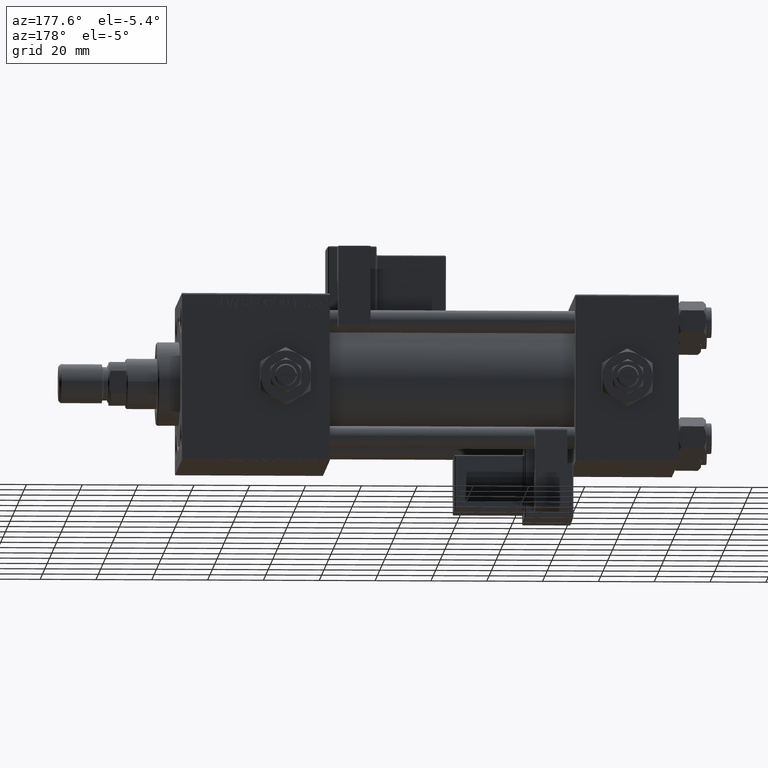
[diagram: clean part render]
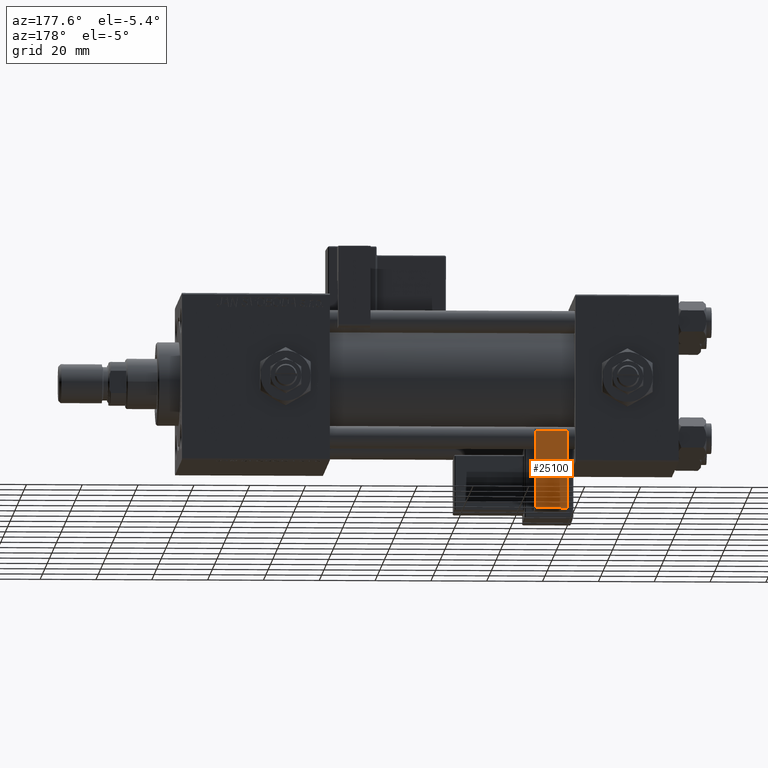
[diagram: same view with one face highlighted and labeled with its STEP entity id]
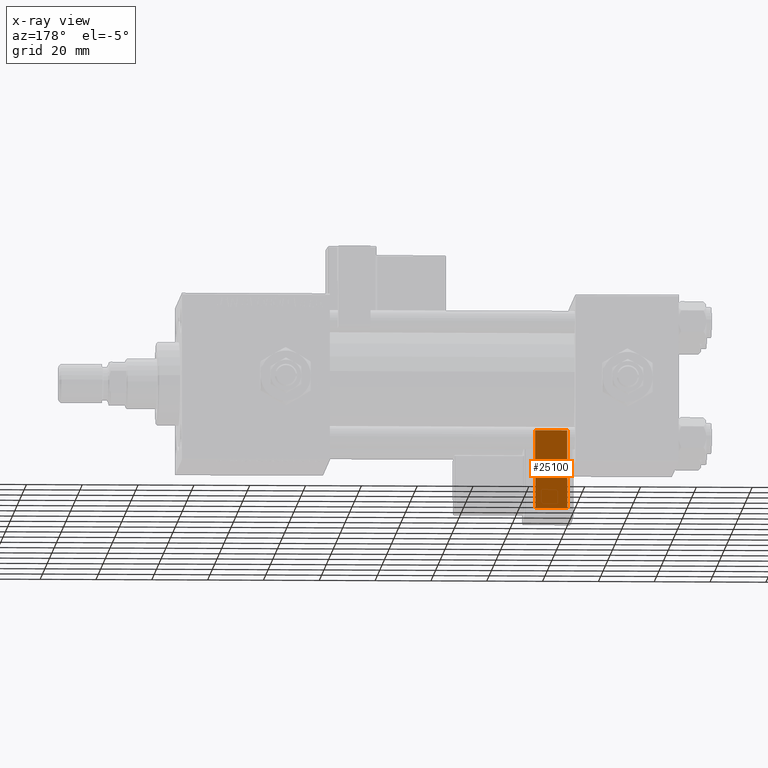
[diagram: x-ray of the same camera — body ghosted, the highlighted face saturated]
A machine part, auxiliary view. The second image highlights one B-rep face of the part: STEP entity #25100.
The next image is the same camera in x-ray: the body ghosted, the highlighted face saturated — about 0% of this face is hidden behind the body in this view.
In plain terms, the highlighted planar face has unit normal (0, -0.9994, -0.0353).
Its self-contained STEP definition (entity closure, byte-faithful):
#705 = CARTESIAN_POINT ( 'NONE',  ( -5.750000000000000000, 5.750000000000000000, 12.00000000000000000 ) ) ;
#6275 = EDGE_CURVE ( 'NONE', #31462, #9587, #31592, .T. ) ;
#6801 = VECTOR ( 'NONE', #12880, 1000.000000000000000 ) ;
#7880 = LINE ( 'NONE', #34283, #6801 ) ;
#9587 = VERTEX_POINT ( 'NONE', #13677 ) ;
#11541 = ORIENTED_EDGE ( 'NONE', *, *, #31949, .T. ) ;
#12053 = VERTEX_POINT ( 'NONE', #20680 ) ;
#12814 = LINE ( 'NONE', #25617, #22203 ) ;
#12880 = DIRECTION ( 'NONE',  ( 1.000000000000000000, 1.508455196501571183E-16, -0.000000000000000000 ) ) ;
#12936 = PLANE ( 'NONE',  #47490 ) ;
#13677 = CARTESIAN_POINT ( 'NONE',  ( -5.750000000000000000, 5.750000000000000000, 0.000000000000000000 ) ) ;
#14090 = DIRECTION ( 'NONE',  ( -0.000000000000000000, -0.000000000000000000, -1.000000000000000000 ) ) ;
#16528 = ORIENTED_EDGE ( 'NONE', *, *, #6275, .F. ) ;
#16669 = EDGE_CURVE ( 'NONE', #12053, #22004, #21797, .T. ) ;
#16849 = DIRECTION ( 'NONE',  ( 1.508455196501571183E-16, -1.000000000000000000, 0.000000000000000000 ) ) ;
#18932 = ORIENTED_EDGE ( 'NONE', *, *, #16669, .T. ) ;
#20440 = VECTOR ( 'NONE', #14090, 1000.000000000000000 ) ;
#20680 = CARTESIAN_POINT ( 'NONE',  ( 5.750000000000000000, 5.750000000000001776, 28.00000000000000000 ) ) ;
#21445 = DIRECTION ( 'NONE',  ( -1.000000000000000000, -1.508455196501571429E-16, -0.000000000000000000 ) ) ;
#21797 = LINE ( 'NONE', #27074, #30312 ) ;
#22004 = VERTEX_POINT ( 'NONE', #51868 ) ;
#22060 = DIRECTION ( 'NONE',  ( -0.000000000000000000, -0.000000000000000000, -1.000000000000000000 ) ) ;
#22203 = VECTOR ( 'NONE', #21445, 1000.000000000000000 ) ;
#22978 = CARTESIAN_POINT ( 'NONE',  ( -5.750000000000000000, 5.750000000000000000, 12.00000000000000000 ) ) ;
#25100 = ADVANCED_FACE ( 'NONE', ( #38767 ), #12936, .F. ) ;
#25617 = CARTESIAN_POINT ( 'NONE',  ( -5.750000000000000000, 5.750000000000000000, 0.000000000000000000 ) ) ;
#27074 = CARTESIAN_POINT ( 'NONE',  ( 5.750000000000000000, 5.750000000000001776, 12.00000000000000000 ) ) ;
#27419 = EDGE_LOOP ( 'NONE', ( #16528, #11541, #18932, #40056 ) ) ;
#30312 = VECTOR ( 'NONE', #22060, 1000.000000000000000 ) ;
#31462 = VERTEX_POINT ( 'NONE', #36048 ) ;
#31592 = LINE ( 'NONE', #22978, #20440 ) ;
#31949 = EDGE_CURVE ( 'NONE', #31462, #12053, #7880, .T. ) ;
#34283 = CARTESIAN_POINT ( 'NONE',  ( -5.750000000000000000, 5.750000000000000000, 28.00000000000000000 ) ) ;
#36048 = CARTESIAN_POINT ( 'NONE',  ( -5.750000000000000000, 5.750000000000000000, 28.00000000000000000 ) ) ;
#38767 = FACE_OUTER_BOUND ( 'NONE', #27419, .T. ) ;
#39706 = EDGE_CURVE ( 'NONE', #22004, #9587, #12814, .T. ) ;
#40056 = ORIENTED_EDGE ( 'NONE', *, *, #39706, .T. ) ;
#47490 = AXIS2_PLACEMENT_3D ( 'NONE', #705, #16849, #51003 ) ;
#51003 = DIRECTION ( 'NONE',  ( 1.000000000000000000, 1.508455196501571183E-16, 0.000000000000000000 ) ) ;
#51868 = CARTESIAN_POINT ( 'NONE',  ( 5.750000000000000000, 5.750000000000001776, 0.000000000000000000 ) ) ;